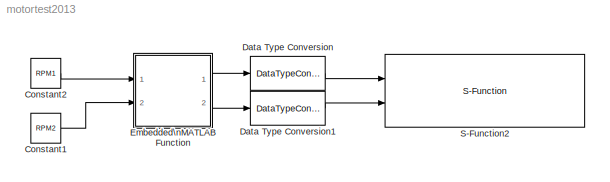
MODEL motortest2013
KIND model
BLOCK [Constant] Constant1
  Value = RPM2
BLOCK [Constant] Constant2
  Value = RPM1
BLOCK [DataTypeConversion] Data Type Conversion
  OutDataTypeMode = uint8
  OutDataTypeStr = uint8
  RndMeth = Floor
  SaturateOnIntegerOverflow = off
BLOCK [DataTypeConversion] Data Type Conversion1
  OutDataTypeMode = uint8
  OutDataTypeStr = uint8
  RndMeth = Floor
  SaturateOnIntegerOverflow = off
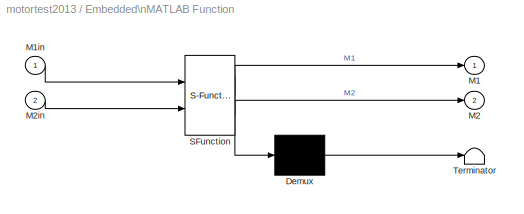
BLOCK [SubSystem] Embedded\nMATLAB Function
  ErrorFcn = Stateflow.Translate.translate
  FunctionWithSeparateData = off
  MaskDescription = Embedded MATLAB block
  MaskDisplay = disp('MotorPackets');
  MaskHideContents = off
  MaskIconFrame = on
  MaskIconOpaque = off
  MaskIconRotate = none
  MaskIconUnits = normalized
  MaskPortRotate = default
  MaskSelfModifiable = on
  MaskType = Stateflow
  MinAlgLoopOccurrences = off
  Opaque = off
  PermitHierarchicalResolution = ExplicitOnly
  Ports = [2, 2]
  PropExecContextOutsideSubsystem = off
  RTWSystemCode = Auto
  RequestExecContextInheritance = off
  TreatAsAtomicUnit = on
BLOCK [Demux] Embedded\nMATLAB Function/ Demux 
  Outputs = 1
  Ports = [1, 1]
BLOCK [S-Function] Embedded\nMATLAB Function/ SFunction 
  EnableBusSupport = on
  FunctionName = sf_sfun
  PortCounts = [2 3]
  Ports = [2, 3]
  Tag = Stateflow S-Function motortest2013 5
BLOCK [Terminator] Embedded\nMATLAB Function/ Terminator 
BLOCK [Outport] Embedded\nMATLAB Function/M1
  IconDisplay = Port number
BLOCK [Inport] Embedded\nMATLAB Function/M1in
  IconDisplay = Port number
BLOCK [Outport] Embedded\nMATLAB Function/M2
  IconDisplay = Port number
  Port = 2
BLOCK [Inport] Embedded\nMATLAB Function/M2in
  IconDisplay = Port number
  Port = 2
BLOCK [S-Function] S-Function2
  EnableBusSupport = off
  FunctionName = Motors_Only_Boat2
  Ports = [2]
LINE Constant1:1 -> Embedded\nMATLAB Function:2
LINE Constant2:1 -> Embedded\nMATLAB Function:1
LINE Data Type Conversion1:1 -> S-Function2:2
LINE Data Type Conversion:1 -> S-Function2:1
LINE Embedded\nMATLAB Function/ Demux :1 -> Embedded\nMATLAB Function/ Terminator :1
LINE Embedded\nMATLAB Function/ SFunction :1 -> Embedded\nMATLAB Function/ Demux :1
LINE Embedded\nMATLAB Function/ SFunction :2 -> Embedded\nMATLAB Function/M1:1
LINE Embedded\nMATLAB Function/ SFunction :3 -> Embedded\nMATLAB Function/M2:1
LINE Embedded\nMATLAB Function/M1in:1 -> Embedded\nMATLAB Function/ SFunction :1
LINE Embedded\nMATLAB Function/M2in:1 -> Embedded\nMATLAB Function/ SFunction :2
LINE Embedded\nMATLAB Function:1 -> Data Type Conversion:1
LINE Embedded\nMATLAB Function:2 -> Data Type Conversion1:1
CHART Embedded\nMATLAB Function states=1 transitions=1
  STATE_LABEL 'eML_blk_kernel()'
